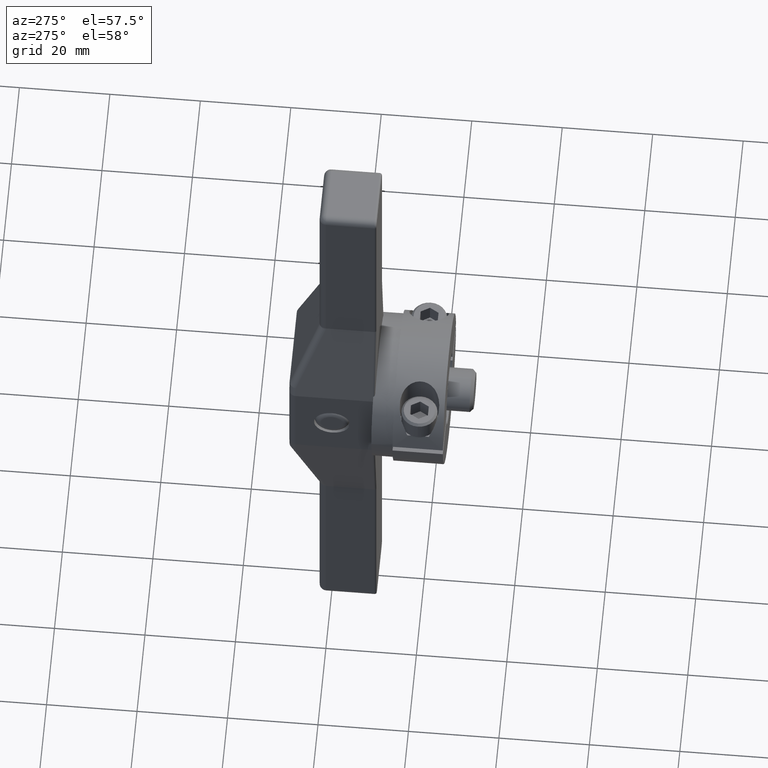
[diagram: clean part render]
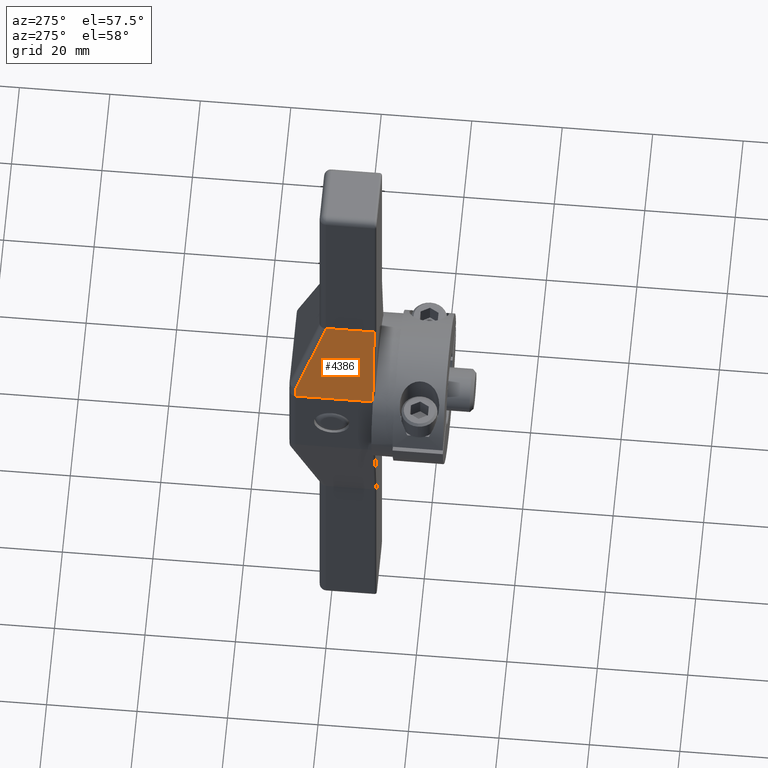
[diagram: same view with one face highlighted and labeled with its STEP entity id]
A machine part, auxiliary view. The second image highlights one B-rep face of the part: STEP entity #4386.
In plain terms, the highlighted planar face has unit normal (-0.9846, 0, 0.1751).
Its self-contained STEP definition (entity closure, byte-faithful):
#2743=DIRECTION('',(1.750707107547E-1,0.E0,9.845558624252E-1));
#2744=VECTOR('',#2743,9.965894332924E-2);
#2745=CARTESIAN_POINT('',(-4.375E-1,6.9E-1,3.898813793279E-1));
#2746=LINE('',#2745,#2744);
#2789=DIRECTION('',(-1.750707107547E-1,0.E0,-9.845558624252E-1));
#2790=VECTOR('',#2789,1.277524207656E-2);
#2791=CARTESIAN_POINT('',(-2.81E-1,4.4E-1,1.27E0));
#2792=LINE('',#2791,#2790);
#2818=DIRECTION('',(0.E0,1.E0,0.E0));
#2819=VECTOR('',#2818,6.7E-1);
#2820=CARTESIAN_POINT('',(-4.375E-1,2.E-2,3.898813793279E-1));
#2821=LINE('',#2820,#2819);
#2844=DIRECTION('',(-1.750707107547E-1,0.E0,-9.845558624252E-1));
#2845=VECTOR('',#2844,8.939245138454E-1);
#2846=CARTESIAN_POINT('',(-2.81E-1,2.E-2,1.27E0));
#2847=LINE('',#2846,#2845);
#3217=DIRECTION('',(0.E0,1.E0,0.E0));
#3218=VECTOR('',#3217,4.2E-1);
#3219=CARTESIAN_POINT('',(-2.81E-1,2.E-2,1.27E0));
#3220=LINE('',#3219,#3218);
#3957=DIRECTION('',(-1.667463349235E-1,3.046907031419E-1,-9.377415609903E-1));
#3958=VECTOR('',#3957,8.205041946539E-1);
#3959=CARTESIAN_POINT('',(-2.832365707104E-1,4.4E-1,1.257422060520E0));
#3960=LINE('',#3959,#3958);
#4004=CARTESIAN_POINT('',(-2.81E-1,4.4E-1,1.27E0));
#4006=VERTEX_POINT('',#4004);
#4011=CARTESIAN_POINT('',(-2.832365707104E-1,4.4E-1,1.257422060520E0));
#4012=VERTEX_POINT('',#4011);
#4015=CARTESIAN_POINT('',(-4.200526379583E-1,6.9E-1,4.880011762258E-1));
#4016=VERTEX_POINT('',#4015);
#4023=CARTESIAN_POINT('',(-4.375E-1,6.9E-1,3.898813793279E-1));
#4024=VERTEX_POINT('',#4023);
#4106=CARTESIAN_POINT('',(-2.81E-1,2.E-2,1.27E0));
#4108=VERTEX_POINT('',#4106);
#4111=CARTESIAN_POINT('',(-4.375E-1,2.E-2,3.898813793279E-1));
#4112=VERTEX_POINT('',#4111);
#4369=CARTESIAN_POINT('',(-4.912933753502E-1,0.E0,8.736028466661E-2));
#4370=DIRECTION('',(-9.845558624252E-1,0.E0,1.750707107547E-1));
#4371=DIRECTION('',(1.750707107547E-1,0.E0,9.845558624252E-1));
#4372=AXIS2_PLACEMENT_3D('',#4369,#4370,#4371);
#4373=PLANE('',#4372);
#4375=ORIENTED_EDGE('',*,*,#4374,.T.);
#4377=ORIENTED_EDGE('',*,*,#4376,.T.);
#4378=ORIENTED_EDGE('',*,*,#4323,.T.);
#4380=ORIENTED_EDGE('',*,*,#4379,.F.);
#4381=ORIENTED_EDGE('',*,*,#4357,.F.);
#4383=ORIENTED_EDGE('',*,*,#4382,.F.);
#4384=EDGE_LOOP('',(#4375,#4377,#4378,#4380,#4381,#4383));
#4385=FACE_OUTER_BOUND('',#4384,.F.);
#4386=ADVANCED_FACE('',(#4385),#4373,.T.);
#4323=EDGE_CURVE('',#4024,#4016,#2746,.T.);
#4357=EDGE_CURVE('',#4006,#4012,#2792,.T.);
#4374=EDGE_CURVE('',#4108,#4112,#2847,.T.);
#4376=EDGE_CURVE('',#4112,#4024,#2821,.T.);
#4379=EDGE_CURVE('',#4012,#4016,#3960,.T.);
#4382=EDGE_CURVE('',#4108,#4006,#3220,.T.);